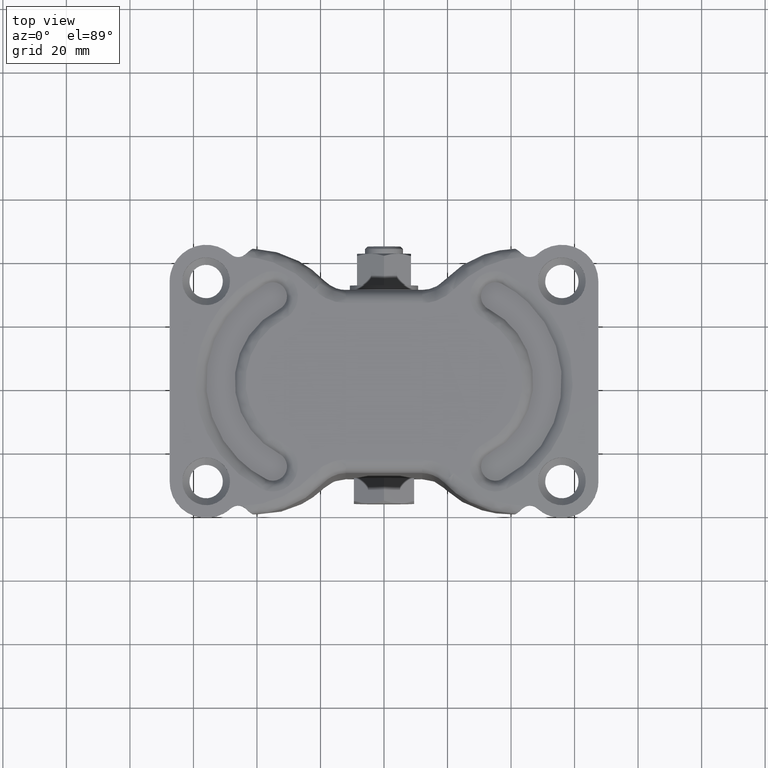
[diagram: clean part render]
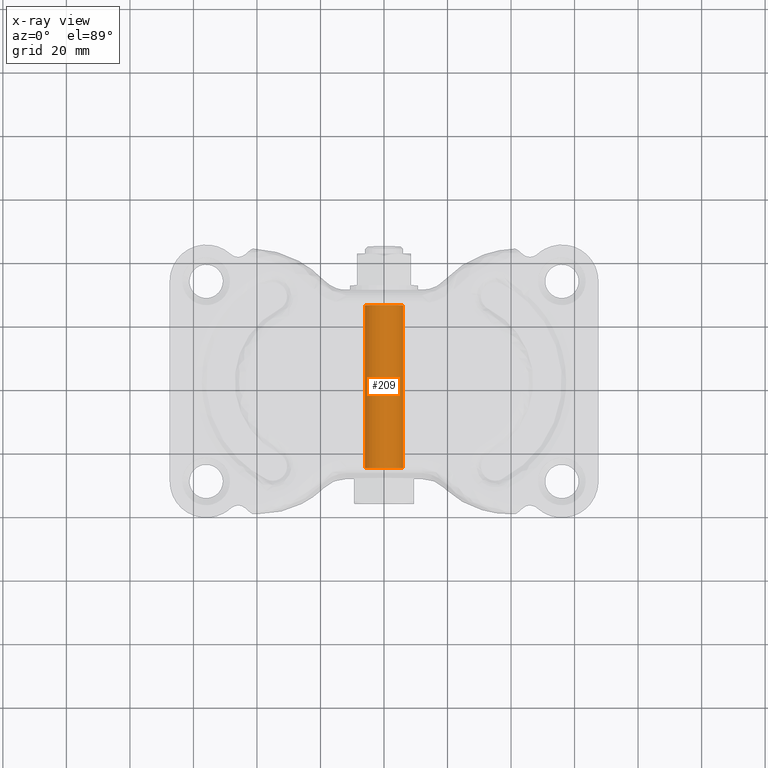
[diagram: x-ray — body ghosted, one internal face saturated and labeled with its STEP entity id]
A machine part, top view, then the same camera in x-ray: the body is ghosted and one INTERNAL B-rep face — a face not visible from any outside direction — is saturated and labeled: STEP entity #209.
In plain terms, the highlighted face is a freeform B-spline surface patch.
Its self-contained STEP definition (entity closure, byte-faithful):
#76=CARTESIAN_POINT('',(0.0,25.649999999999999,-94.0));
#77=VERTEX_POINT('',#76);
#78=CARTESIAN_POINT('',(-5.988808790520288,25.649999999999999,-99.633708762612429));
#79=VERTEX_POINT('',#78);
#80=CARTESIAN_POINT('',(0.0,25.649999999999999,-94.0));
#81=CARTESIAN_POINT('',(-5.644236401265702,25.650000000000002,-94.0));
#82=CARTESIAN_POINT('',(-5.988808790520289,25.649999999999995,-99.633708762612429));
#90=(BOUNDED_CURVE()B_SPLINE_CURVE(2,(#80,#81,#82),.UNSPECIFIED.,.F.,.U.)B_SPLINE_CURVE_WITH_KNOTS((3,3),(0.500000000000000,0.739332962236828),.UNSPECIFIED.)CURVE()GEOMETRIC_REPRESENTATION_ITEM()RATIONAL_B_SPLINE_CURVE((1.0,0.719603993289188,0.976072041662185))REPRESENTATION_ITEM(''));
#91=EDGE_CURVE('',#77,#79,#90,.T.);
#110=CARTESIAN_POINT('',(5.988808790520288,25.649999999999999,-100.366291237387600));
#111=VERTEX_POINT('',#110);
#125=CARTESIAN_POINT('',(5.988808790520288,25.649999999999995,-100.366291237387560));
#126=CARTESIAN_POINT('',(5.999999999999999,25.649999999999999,-100.183316579880990));
#127=CARTESIAN_POINT('',(6.0,25.649999999999999,-100.0));
#128=CARTESIAN_POINT('',(6.0,25.650000000000006,-94.000000000000014));
#129=CARTESIAN_POINT('',(0.0,25.649999999999999,-94.0));
#137=(BOUNDED_CURVE()B_SPLINE_CURVE(2,(#125,#126,#127,#128,#129),.UNSPECIFIED.,.F.,.U.)B_SPLINE_CURVE_WITH_KNOTS((3,2,3),(0.239332962236828,0.250000000000000,0.500000000000000),.UNSPECIFIED.)CURVE()GEOMETRIC_REPRESENTATION_ITEM()RATIONAL_B_SPLINE_CURVE((0.976072041662184,0.987502787897359,1.0,0.707106781186548,1.0))REPRESENTATION_ITEM(''));
#138=EDGE_CURVE('',#111,#77,#137,.T.);
#143=CARTESIAN_POINT('',(5.988808790531200,26.932500000000012,-100.366291237209100));
#144=CARTESIAN_POINT('',(6.355100027740342,26.932500000000012,-94.377482446677945));
#145=CARTESIAN_POINT('',(0.366291237209142,26.932500000000012,-94.011191209468805));
#146=CARTESIAN_POINT('',(-5.622517553322059,26.932500000000012,-93.644899972259665));
#147=CARTESIAN_POINT('',(-5.988808790531200,26.932500000000012,-99.633708762790860));
#148=CARTESIAN_POINT('',(5.988808790531200,-26.964562500000000,-100.366291237209100));
#149=CARTESIAN_POINT('',(6.355100027740342,-26.964562500000007,-94.377482446677945));
#150=CARTESIAN_POINT('',(0.366291237209142,-26.964562500000000,-94.011191209468805));
#151=CARTESIAN_POINT('',(-5.622517553322059,-26.964562500000007,-93.644899972259665));
#152=CARTESIAN_POINT('',(-5.988808790531200,-26.964562500000000,-99.633708762790860));
#160=(BOUNDED_SURFACE()B_SPLINE_SURFACE(2,1,((#143,#148),(#144,#149),(#145,#150),(#146,#151),(#147,#152)),.UNSPECIFIED.,.F.,.F.,.U.)B_SPLINE_SURFACE_WITH_KNOTS((3,2,3),(2,2),(0.0,9.941125496954287,19.882250993908571),(0.0,53.897062499999997),.UNSPECIFIED.)GEOMETRIC_REPRESENTATION_ITEM()RATIONAL_B_SPLINE_SURFACE(((1.0,1.0),(0.707106781186548,0.707106781186548),(1.0,1.0),(0.707106781186548,0.707106781186548),(1.0,1.0)))REPRESENTATION_ITEM('')SURFACE());
#161=CARTESIAN_POINT('',(5.988808790520288,-25.649999999999999,-100.366291237387600));
#162=VERTEX_POINT('',#161);
#163=CARTESIAN_POINT('',(0.0,-25.649999999999999,-94.0));
#164=VERTEX_POINT('',#163);
#165=CARTESIAN_POINT('',(5.988808790520290,-25.650000000000002,-100.366291237387590));
#166=CARTESIAN_POINT('',(6.0,-25.649999999999999,-100.183316579881010));
#167=CARTESIAN_POINT('',(6.0,-25.649999999999999,-100.0));
#168=CARTESIAN_POINT('',(6.0,-25.650000000000006,-94.000000000000014));
#169=CARTESIAN_POINT('',(0.0,-25.649999999999999,-94.0));
#177=(BOUNDED_CURVE()B_SPLINE_CURVE(2,(#165,#166,#167,#168,#169),.UNSPECIFIED.,.F.,.U.)B_SPLINE_CURVE_WITH_KNOTS((3,2,3),(0.239332962236828,0.250000000000000,0.500000000000000),.UNSPECIFIED.)CURVE()GEOMETRIC_REPRESENTATION_ITEM()RATIONAL_B_SPLINE_CURVE((0.976072041662184,0.987502787897359,1.0,0.707106781186548,1.0))REPRESENTATION_ITEM(''));
#178=EDGE_CURVE('',#162,#164,#177,.T.);
#179=ORIENTED_EDGE('',*,*,#178,.T.);
#180=CARTESIAN_POINT('',(-5.988808790520288,-25.649999999999999,-99.633708762612429));
#181=VERTEX_POINT('',#180);
#182=CARTESIAN_POINT('',(0.0,-25.649999999999999,-94.0));
#183=CARTESIAN_POINT('',(-5.644236401265702,-25.650000000000002,-94.0));
#184=CARTESIAN_POINT('',(-5.988808790520289,-25.649999999999995,-99.633708762612429));
#192=(BOUNDED_CURVE()B_SPLINE_CURVE(2,(#182,#183,#184),.UNSPECIFIED.,.F.,.U.)B_SPLINE_CURVE_WITH_KNOTS((3,3),(0.500000000000000,0.739332962236828),.UNSPECIFIED.)CURVE()GEOMETRIC_REPRESENTATION_ITEM()RATIONAL_B_SPLINE_CURVE((1.0,0.719603993289188,0.976072041662185))REPRESENTATION_ITEM(''));
#193=EDGE_CURVE('',#164,#181,#192,.T.);
#194=ORIENTED_EDGE('',*,*,#193,.T.);
#195=CARTESIAN_POINT('',(-5.988808790520288,25.649999999999999,-99.633708762612429));
#196=CARTESIAN_POINT('',(-5.988808790520288,-25.649999999999999,-99.633708762612429));
#197=QUASI_UNIFORM_CURVE('',1,(#195,#196),.UNSPECIFIED.,.F.,.U.);
#198=EDGE_CURVE('',#79,#181,#197,.T.);
#199=ORIENTED_EDGE('',*,*,#198,.F.);
#200=ORIENTED_EDGE('',*,*,#91,.F.);
#201=ORIENTED_EDGE('',*,*,#138,.F.);
#202=CARTESIAN_POINT('',(5.988808790520288,25.649999999999999,-100.366291237387600));
#203=CARTESIAN_POINT('',(5.988808790520288,-25.649999999999999,-100.366291237387600));
#204=QUASI_UNIFORM_CURVE('',1,(#202,#203),.UNSPECIFIED.,.F.,.U.);
#205=EDGE_CURVE('',#111,#162,#204,.T.);
#206=ORIENTED_EDGE('',*,*,#205,.T.);
#207=EDGE_LOOP('',(#179,#194,#199,#200,#201,#206));
#208=FACE_OUTER_BOUND('',#207,.T.);
#209=ADVANCED_FACE('',(#208),#160,.F.);